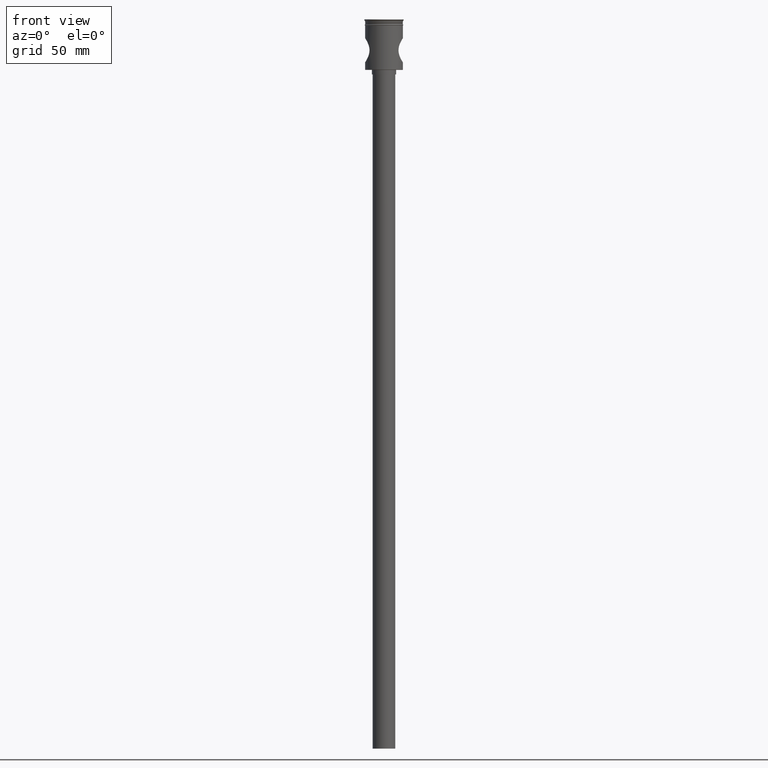
[diagram: clean part render]
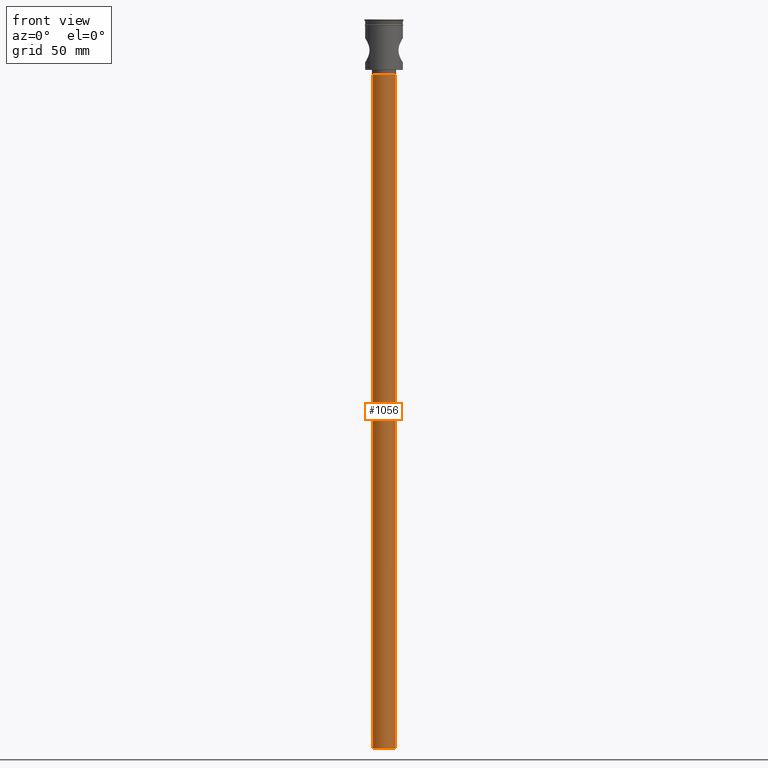
[diagram: same view with one face highlighted and labeled with its STEP entity id]
A machine part, front view. The second image highlights one B-rep face of the part: STEP entity #1056.
In plain terms, the highlighted cylindrical surface (edge-blend (fillet) strip) has radius 7.5 mm, axis along (-0, -0, 1).
Its self-contained STEP definition (entity closure, byte-faithful):
#80 = DIRECTION ( 'NONE',  ( -0.000000000000000000, -0.000000000000000000, 1.000000000000000000 ) ) ;
#95 = VERTEX_POINT ( 'NONE', #684 ) ;
#130 = CARTESIAN_POINT ( 'NONE',  ( 7.500000000000000000, 0.000000000000000000, -36.50000000000000711 ) ) ;
#187 = ORIENTED_EDGE ( 'NONE', *, *, #402, .F. ) ;
#192 = DIRECTION ( 'NONE',  ( 0.000000000000000000, 0.000000000000000000, -1.000000000000000000 ) ) ;
#209 = CYLINDRICAL_SURFACE ( 'NONE', #855, 7.500000000000000000 ) ;
#304 = LINE ( 'NONE', #311, #1203 ) ;
#311 = CARTESIAN_POINT ( 'NONE',  ( -7.500000000000000000, 9.184850993605147944E-16, -483.5000000000000568 ) ) ;
#343 = FACE_OUTER_BOUND ( 'NONE', #1537, .T. ) ;
#402 = EDGE_CURVE ( 'NONE', #1306, #1048, #447, .T. ) ;
#447 = CIRCLE ( 'NONE', #1049, 7.500000000000000000 ) ;
#454 = CIRCLE ( 'NONE', #857, 7.500000000000000000 ) ;
#458 = CARTESIAN_POINT ( 'NONE',  ( 0.000000000000000000, 0.000000000000000000, -483.5000000000000568 ) ) ;
#513 = DIRECTION ( 'NONE',  ( -0.000000000000000000, -0.000000000000000000, 1.000000000000000000 ) ) ;
#578 = VERTEX_POINT ( 'NONE', #130 ) ;
#589 = DIRECTION ( 'NONE',  ( -1.000000000000000000, 0.000000000000000000, 0.000000000000000000 ) ) ;
#666 = DIRECTION ( 'NONE',  ( -1.000000000000000000, 0.000000000000000000, 0.000000000000000000 ) ) ;
#684 = CARTESIAN_POINT ( 'NONE',  ( -7.500000000000000000, 9.184850993605147944E-16, -36.50000000000000711 ) ) ;
#685 = CARTESIAN_POINT ( 'NONE',  ( 0.000000000000000000, 0.000000000000000000, -483.5000000000000568 ) ) ;
#695 = EDGE_CURVE ( 'NONE', #1306, #578, #743, .T. ) ;
#702 = DIRECTION ( 'NONE',  ( 1.000000000000000000, 0.000000000000000000, 0.000000000000000000 ) ) ;
#743 = LINE ( 'NONE', #1223, #1323 ) ;
#855 = AXIS2_PLACEMENT_3D ( 'NONE', #685, #80, #702 ) ;
#857 = AXIS2_PLACEMENT_3D ( 'NONE', #1543, #192, #666 ) ;
#862 = ORIENTED_EDGE ( 'NONE', *, *, #1446, .T. ) ;
#995 = EDGE_CURVE ( 'NONE', #1048, #95, #304, .T. ) ;
#1048 = VERTEX_POINT ( 'NONE', #1531 ) ;
#1049 = AXIS2_PLACEMENT_3D ( 'NONE', #458, #1443, #589 ) ;
#1056 = ADVANCED_FACE ( 'NONE', ( #343 ), #209, .T. ) ;
#1087 = ORIENTED_EDGE ( 'NONE', *, *, #995, .F. ) ;
#1158 = ORIENTED_EDGE ( 'NONE', *, *, #695, .T. ) ;
#1203 = VECTOR ( 'NONE', #513, 1000.000000000000000 ) ;
#1223 = CARTESIAN_POINT ( 'NONE',  ( 7.500000000000000000, 0.000000000000000000, -483.5000000000000568 ) ) ;
#1230 = DIRECTION ( 'NONE',  ( -0.000000000000000000, -0.000000000000000000, 1.000000000000000000 ) ) ;
#1306 = VERTEX_POINT ( 'NONE', #1363 ) ;
#1323 = VECTOR ( 'NONE', #1230, 1000.000000000000000 ) ;
#1363 = CARTESIAN_POINT ( 'NONE',  ( 7.500000000000000000, 0.000000000000000000, -483.5000000000000568 ) ) ;
#1443 = DIRECTION ( 'NONE',  ( 0.000000000000000000, 0.000000000000000000, -1.000000000000000000 ) ) ;
#1446 = EDGE_CURVE ( 'NONE', #578, #95, #454, .T. ) ;
#1531 = CARTESIAN_POINT ( 'NONE',  ( -7.500000000000000000, 9.184850993605147944E-16, -483.5000000000000568 ) ) ;
#1537 = EDGE_LOOP ( 'NONE', ( #1087, #187, #1158, #862 ) ) ;
#1543 = CARTESIAN_POINT ( 'NONE',  ( 0.000000000000000000, 0.000000000000000000, -36.50000000000000711 ) ) ;